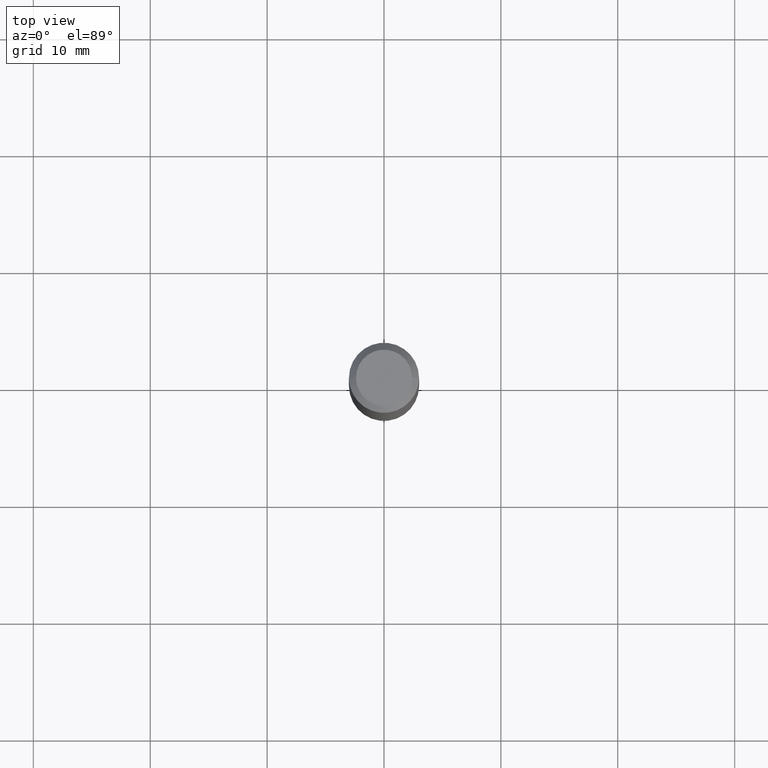
[diagram: clean part render]
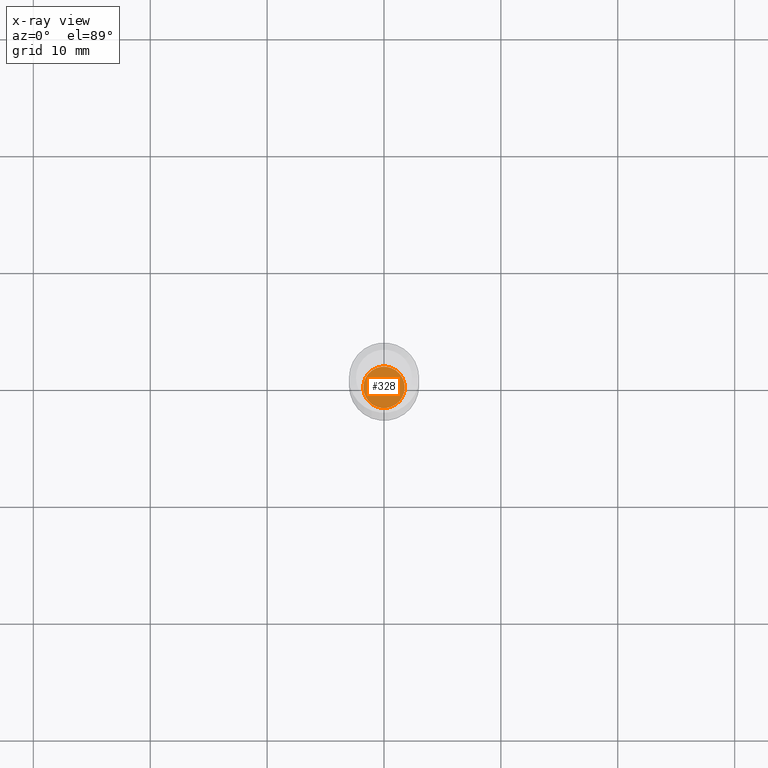
[diagram: x-ray — body ghosted, one internal face saturated and labeled with its STEP entity id]
A machine part, top view, then the same camera in x-ray: the body is ghosted and one INTERNAL B-rep face — a face not visible from any outside direction — is saturated and labeled: STEP entity #328.
In plain terms, the highlighted planar face has unit normal (-0, 0, 1).
Its self-contained STEP definition (entity closure, byte-faithful):
#1 = VERTEX_POINT ( 'NONE', #118 ) ;
#45 = CARTESIAN_POINT ( 'NONE',  ( 4.621202403048053204E-29, -6.597852286011893278E-15, -1.889700000000000379 ) ) ;
#48 = AXIS2_PLACEMENT_3D ( 'NONE', #284, #183, #355 ) ;
#73 = DIRECTION ( 'NONE',  ( 1.000000000000000000, -6.982962677686271444E-15, 0.000000000000000000 ) ) ;
#106 = DIRECTION ( 'NONE',  ( 1.000000000000000000, -6.982962677686271444E-15, 0.000000000000000000 ) ) ;
#109 = VERTEX_POINT ( 'NONE', #213 ) ;
#118 = CARTESIAN_POINT ( 'NONE',  ( -0.06980000000000000093, -6.099244229277232338E-15, -1.889700000000000379 ) ) ;
#128 = DIRECTION ( 'NONE',  ( -2.445468806185136597E-29, 3.491481338843145583E-15, 1.000000000000000000 ) ) ;
#131 = ORIENTED_EDGE ( 'NONE', *, *, #271, .F. ) ;
#133 = PLANE ( 'NONE',  #48 ) ;
#136 = CIRCLE ( 'NONE', #190, 0.06980000000000000093 ) ;
#183 = DIRECTION ( 'NONE',  ( -2.438088387897960049E-29, 3.491481338843145188E-15, 1.000000000000000000 ) ) ;
#190 = AXIS2_PLACEMENT_3D ( 'NONE', #45, #128, #106 ) ;
#213 = CARTESIAN_POINT ( 'NONE',  ( 0.06980000000000000093, -7.085263080914395219E-15, -1.889700000000000379 ) ) ;
#215 = AXIS2_PLACEMENT_3D ( 'NONE', #300, #260, #73 ) ;
#218 = ORIENTED_EDGE ( 'NONE', *, *, #413, .F. ) ;
#260 = DIRECTION ( 'NONE',  ( -2.445468806185136597E-29, 3.491481338843145583E-15, 1.000000000000000000 ) ) ;
#271 = EDGE_CURVE ( 'NONE', #109, #1, #136, .T. ) ;
#284 = CARTESIAN_POINT ( 'NONE',  ( -5.707926267458934277E-29, -2.138975243967194241E-14, -1.889700000000000157 ) ) ;
#300 = CARTESIAN_POINT ( 'NONE',  ( 4.621202403048053204E-29, -6.597852286011893278E-15, -1.889700000000000379 ) ) ;
#328 = ADVANCED_FACE ( 'NONE', ( #406 ), #133, .F. ) ;
#355 = DIRECTION ( 'NONE',  ( 1.000000000000000000, -6.982962677686265922E-15, 4.876176775795935793E-29 ) ) ;
#363 = CIRCLE ( 'NONE', #215, 0.06980000000000000093 ) ;
#406 = FACE_OUTER_BOUND ( 'NONE', #451, .T. ) ;
#413 = EDGE_CURVE ( 'NONE', #1, #109, #363, .T. ) ;
#451 = EDGE_LOOP ( 'NONE', ( #131, #218 ) ) ;